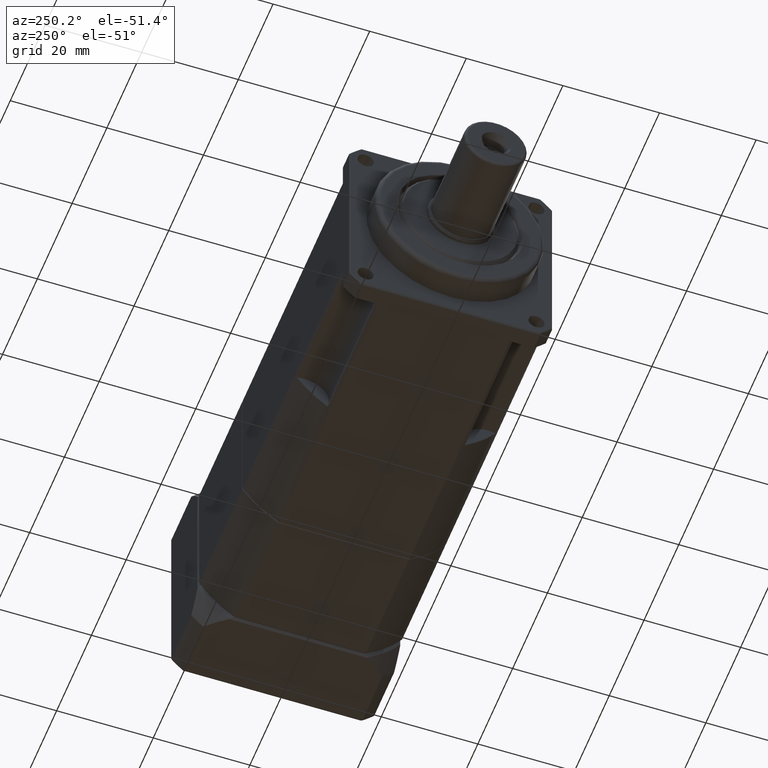
[diagram: clean part render]
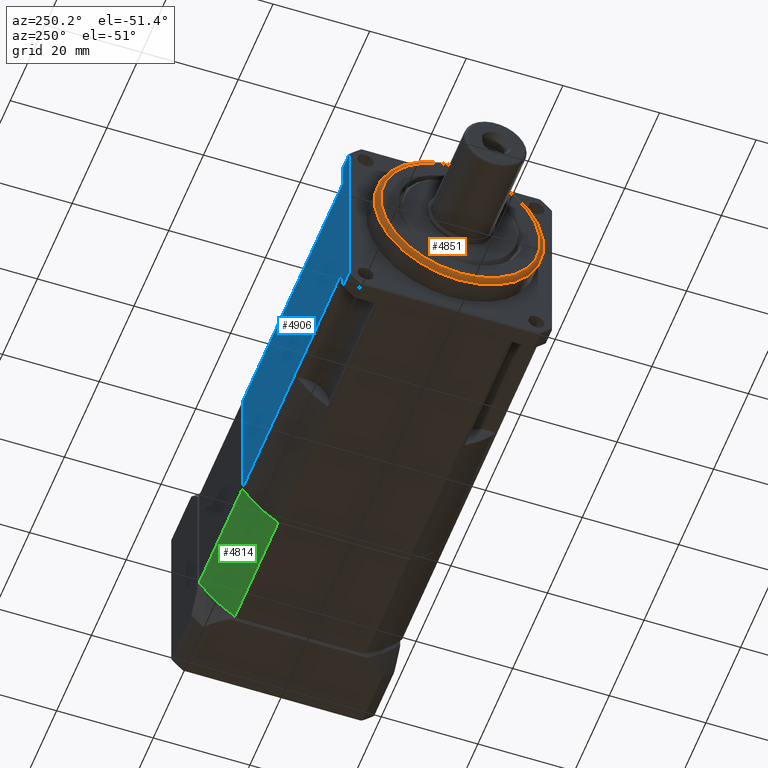
[diagram: same view with three faces highlighted in distinct colors, each labeled with its STEP entity id]
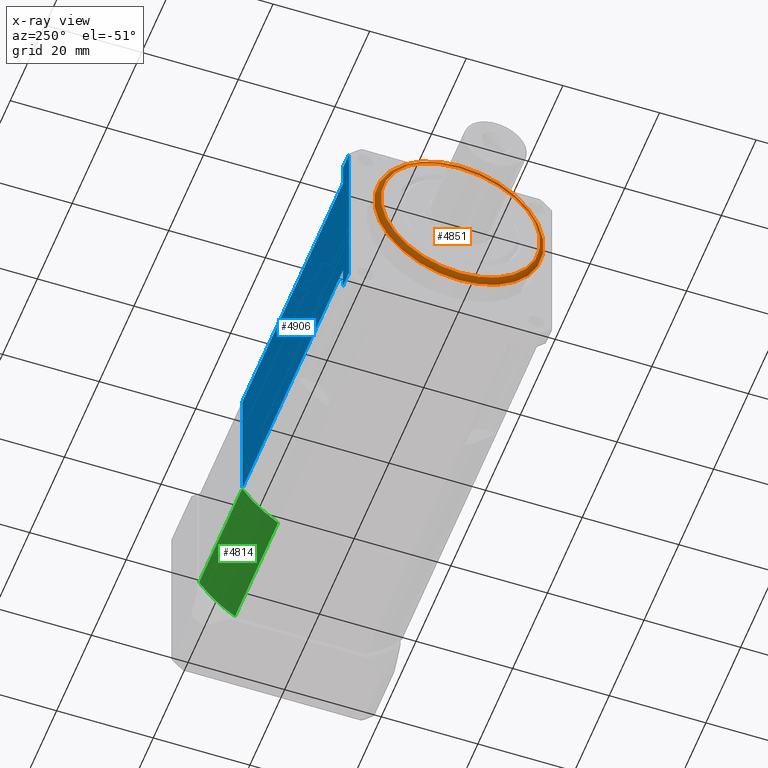
[diagram: x-ray of the same camera — body ghosted, the three highlighted faces saturated]
A machine part, auxiliary view with three faces highlighted in distinct colors.
The next image is the same camera in x-ray (body ghosted, the three faces saturated) — at least one of them is partly hidden behind the body in this view.
Their STEP definitions:

[orange] entity #4851 — the highlighted toroidal blend (fillet) surface has major radius 16.5 mm and minor (blend) radius 1 mm.
#681=TOROIDAL_SURFACE('',#5349,16.5,1.);
#932=FACE_BOUND('',#1569,.T.);
#1157=FACE_OUTER_BOUND('',#1568,.T.);
#1568=EDGE_LOOP('',(#3702));
#1569=EDGE_LOOP('',(#3703));
#1938=CIRCLE('',#5348,16.5);
#1939=CIRCLE('',#5350,17.5);
#2278=VERTEX_POINT('',#7952);
#2279=VERTEX_POINT('',#7955);
#2797=EDGE_CURVE('',#2278,#2278,#1938,.T.);
#2798=EDGE_CURVE('',#2279,#2279,#1939,.T.);
#3702=ORIENTED_EDGE('',*,*,#2798,.T.);
#3703=ORIENTED_EDGE('',*,*,#2797,.T.);
#4851=ADVANCED_FACE('',(#1157,#932),#681,.T.);
#5348=AXIS2_PLACEMENT_3D('',#7953,#6385,#6386);
#5349=AXIS2_PLACEMENT_3D('',#7954,#6387,#6388);
#5350=AXIS2_PLACEMENT_3D('',#7956,#6389,#6390);
#6385=DIRECTION('center_axis',(1.,-4.44089209850051E-16,-1.50008167835232E-15));
#6386=DIRECTION('ref_axis',(-1.50008167835233E-15,-9.43516098583778E-15,
-1.));
#6387=DIRECTION('center_axis',(-1.,4.44089209850051E-16,1.50008167835232E-15));
#6388=DIRECTION('ref_axis',(1.21807326130303E-15,9.33856166998989E-15,1.));
#6389=DIRECTION('center_axis',(-1.,4.44089209850051E-16,1.50008167835232E-15));
#6390=DIRECTION('ref_axis',(-1.50008167835233E-15,-9.43516098583778E-15,
-1.));
#7952=CARTESIAN_POINT('',(-44.2840049856136,-38.8674851319123,-10.8477552941332));
#7953=CARTESIAN_POINT('Origin',(-44.2840049856136,-38.8674851319124,-27.3477552941332));
#7954=CARTESIAN_POINT('Origin',(-43.2840049856136,-38.8674851319124,-27.3477552941332));
#7955=CARTESIAN_POINT('',(-43.2840049856136,-38.8674851319123,-9.84775529413318));
#7956=CARTESIAN_POINT('Origin',(-43.2840049856136,-38.8674851319124,-27.3477552941332));

[blue] entity #4906 — the highlighted planar face has unit normal (0, 1, -0).
#202=LINE('',#7728,#436);
#228=LINE('',#7983,#462);
#239=LINE('',#8072,#473);
#247=LINE('',#8150,#481);
#250=LINE('',#8173,#484);
#265=LINE('',#8230,#499);
#266=LINE('',#8232,#500);
#273=LINE('',#8244,#507);
#436=VECTOR('',#6187,27.1293199325011);
#462=VECTOR('',#6409,4.95559921120161);
#473=VECTOR('',#6484,4.95559921120161);
#481=VECTOR('',#6530,37.0405183549043);
#484=VECTOR('',#6549,3.6);
#499=VECTOR('',#6628,57.7);
#500=VECTOR('',#6631,57.7);
#507=VECTOR('',#6648,3.6);
#789=PLANE('',#5456);
#1212=FACE_OUTER_BOUND('',#1643,.T.);
#1643=EDGE_LOOP('',(#3938,#3939,#3940,#3941,#3942,#3943,#3944,#3945));
#2227=VERTEX_POINT('',#7725);
#2228=VERTEX_POINT('',#7727);
#2286=VERTEX_POINT('',#7975);
#2287=VERTEX_POINT('',#7982);
#2316=VERTEX_POINT('',#8069);
#2317=VERTEX_POINT('',#8071);
#2334=VERTEX_POINT('',#8136);
#2336=VERTEX_POINT('',#8145);
#2717=EDGE_CURVE('',#2227,#2228,#202,.T.);
#2807=EDGE_CURVE('',#2286,#2287,#228,.T.);
#2844=EDGE_CURVE('',#2316,#2317,#239,.T.);
#2871=EDGE_CURVE('',#2336,#2334,#247,.T.);
#2880=EDGE_CURVE('',#2336,#2317,#250,.T.);
#2905=EDGE_CURVE('',#2316,#2228,#265,.T.);
#2906=EDGE_CURVE('',#2227,#2287,#266,.T.);
#2913=EDGE_CURVE('',#2286,#2334,#273,.T.);
#3938=ORIENTED_EDGE('',*,*,#2807,.F.);
#3939=ORIENTED_EDGE('',*,*,#2913,.T.);
#3940=ORIENTED_EDGE('',*,*,#2871,.F.);
#3941=ORIENTED_EDGE('',*,*,#2880,.T.);
#3942=ORIENTED_EDGE('',*,*,#2844,.F.);
#3943=ORIENTED_EDGE('',*,*,#2905,.T.);
#3944=ORIENTED_EDGE('',*,*,#2717,.F.);
#3945=ORIENTED_EDGE('',*,*,#2906,.T.);
#4906=ADVANCED_FACE('',(#1212),#789,.T.);
#5456=AXIS2_PLACEMENT_3D('',#8245,#6649,#6650);
#6187=DIRECTION('',(2.1411978686737E-15,1.07155521228684E-14,1.));
#6409=DIRECTION('',(1.50008167835233E-15,9.01221888121868E-15,1.));
#6484=DIRECTION('',(1.50008167835233E-15,9.01221888121868E-15,1.));
#6530=DIRECTION('',(-1.50008167835233E-15,-9.01221888121868E-15,-1.));
#6549=DIRECTION('',(1.,-4.44089209850051E-16,-1.50008167835232E-15));
#6628=DIRECTION('',(1.,-4.44089209850051E-16,-1.50008167835232E-15));
#6631=DIRECTION('',(-1.,4.44089209850051E-16,1.50008167835232E-15));
#6648=DIRECTION('',(-1.,4.44089209850051E-16,1.50008167835232E-15));
#6649=DIRECTION('center_axis',(4.44089209850038E-16,1.,-9.01221888121868E-15));
#6650=DIRECTION('ref_axis',(-1.50990331349021E-15,-8.88178419700125E-15,
-1.));
#7725=CARTESIAN_POINT('',(22.7159950143863,-17.8674851319126,-40.9124152603841));
#7727=CARTESIAN_POINT('',(22.7159950143864,-17.8674851319123,-13.783095327883));
#7728=CARTESIAN_POINT('',(22.7159950143863,-17.8674851319127,-48.3477552941335));
#7975=CARTESIAN_POINT('',(-34.9840049856136,-17.8674851319126,-45.8680144715855));
#7982=CARTESIAN_POINT('',(-34.9840049856136,-17.8674851319126,-40.9124152603839));
#7983=CARTESIAN_POINT('',(-34.9840049856136,-17.8674851319123,-16.8477552941334));
#8069=CARTESIAN_POINT('',(-34.9840049856136,-17.8674851319123,-13.7830953278828));
#8071=CARTESIAN_POINT('',(-34.9840049856136,-17.8674851319123,-8.82749611668123));
#8072=CARTESIAN_POINT('',(-34.9840049856136,-17.8674851319123,-16.8477552941334));
#8136=CARTESIAN_POINT('',(-38.5840049856136,-17.8674851319126,-45.8680144715855));
#8145=CARTESIAN_POINT('',(-38.5840049856136,-17.8674851319123,-8.82749611668123));
#8150=CARTESIAN_POINT('',(-38.5840049856136,-17.8674851319123,-16.8477552941334));
#8173=CARTESIAN_POINT('',(-7.28400498561356,-17.8674851319123,-8.82749611668127));
#8230=CARTESIAN_POINT('',(-7.28400498561356,-17.8674851319123,-13.7830953278829));
#8232=CARTESIAN_POINT('',(-7.2840049856136,-17.8674851319126,-40.912415260384));
#8244=CARTESIAN_POINT('',(-7.28400498561361,-17.8674851319126,-45.8680144715856));
#8245=CARTESIAN_POINT('Origin',(-7.28400498561355,-17.8674851319123,-6.34775529413343));

[green] entity #4814 — the highlighted cylindrical surface (partial cylindrical patch) has radius 25 mm, axis along (-1, -0, 0).
#216=LINE('',#7821,#450);
#218=LINE('',#7825,#452);
#450=VECTOR('',#6251,24.8);
#452=VECTOR('',#6255,24.8);
#1120=FACE_OUTER_BOUND('',#1508,.T.);
#1508=EDGE_LOOP('',(#3595,#3596,#3597,#3598));
#1911=CIRCLE('',#5282,25.);
#1913=CIRCLE('',#5287,25.);
#2241=VERTEX_POINT('',#7759);
#2247=VERTEX_POINT('',#7805);
#2250=VERTEX_POINT('',#7820);
#2251=VERTEX_POINT('',#7824);
#2750=EDGE_CURVE('',#2241,#2247,#1911,.T.);
#2754=EDGE_CURVE('',#2247,#2250,#216,.T.);
#2756=EDGE_CURVE('',#2251,#2241,#218,.T.);
#2757=EDGE_CURVE('',#2250,#2251,#1913,.T.);
#3595=ORIENTED_EDGE('',*,*,#2750,.F.);
#3596=ORIENTED_EDGE('',*,*,#2756,.F.);
#3597=ORIENTED_EDGE('',*,*,#2757,.F.);
#3598=ORIENTED_EDGE('',*,*,#2754,.F.);
#4421=CYLINDRICAL_SURFACE('',#5286,25.);
#4814=ADVANCED_FACE('',(#1120),#4421,.T.);
#5282=AXIS2_PLACEMENT_3D('',#7812,#6241,#6242);
#5286=AXIS2_PLACEMENT_3D('',#7823,#6253,#6254);
#5287=AXIS2_PLACEMENT_3D('',#7826,#6256,#6257);
#6241=DIRECTION('center_axis',(1.,1.06348745799565E-16,-2.09341157557153E-15));
#6242=DIRECTION('ref_axis',(-2.09341157557153E-15,-8.8592327918137E-15,
-1.));
#6251=DIRECTION('',(-1.,-1.06348745799565E-16,2.09341157557153E-15));
#6253=DIRECTION('center_axis',(-1.,-1.06348745799565E-16,2.09341157557153E-15));
#6254=DIRECTION('ref_axis',(2.09341157557153E-15,8.8592327918137E-15,1.));
#6255=DIRECTION('',(1.,1.06348745799565E-16,-2.09341157557153E-15));
#6256=DIRECTION('center_axis',(-1.,-1.06348745799565E-16,2.09341157557153E-15));
#6257=DIRECTION('ref_axis',(-2.09341157557153E-15,-8.8592327918137E-15,
-1.));
#7759=CARTESIAN_POINT('',(47.7159950143862,-25.3028251656621,-48.3477552941335));
#7805=CARTESIAN_POINT('',(47.7159950143862,-17.8674851319126,-40.9124152603841));
#7812=CARTESIAN_POINT('Origin',(47.7159950143862,-38.8674851319125,-27.3477552941333));
#7820=CARTESIAN_POINT('',(22.9159950143862,-17.8674851319126,-40.912415260384));
#7821=CARTESIAN_POINT('',(48.2159950143862,-17.8674851319126,-40.9124152603841));
#7823=CARTESIAN_POINT('Origin',(48.2159950143862,-38.8674851319125,-27.3477552941333));
#7824=CARTESIAN_POINT('',(22.9159950143862,-25.3028251656621,-48.3477552941334));
#7825=CARTESIAN_POINT('',(48.2159950143862,-25.3028251656621,-48.3477552941335));
#7826=CARTESIAN_POINT('Origin',(22.9159950143862,-38.8674851319125,-27.3477552941333));